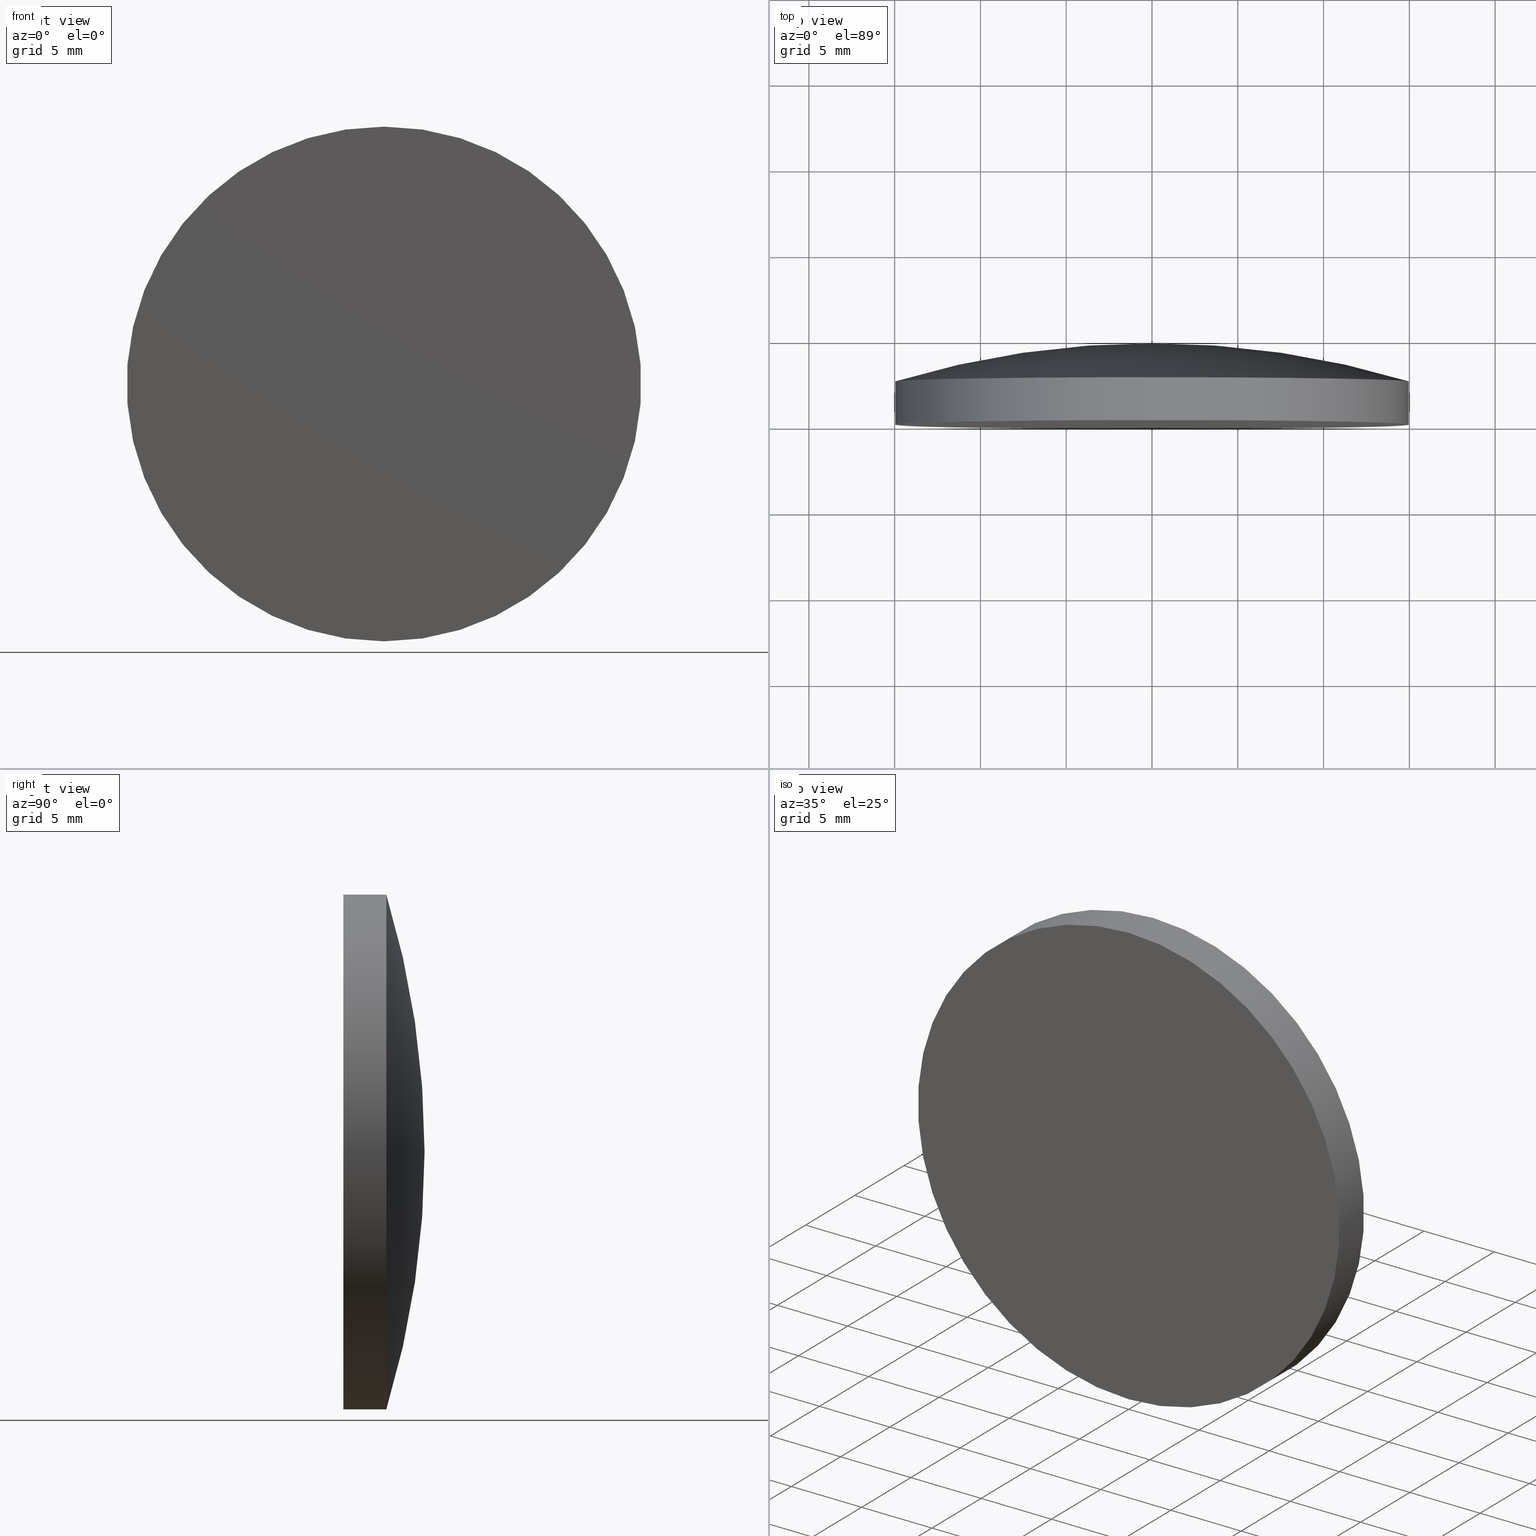
[diagram: canonical four-view strip — front | top / right | iso, engineering-drawing reading convention]
A machine part, canonical four-view strip (front | top / right | iso — engineering-drawing reading convention). The complete STEP part file that produces these views, byte-faithful:
ISO-10303-21;
HEADER;
FILE_DESCRIPTION (( 'STEP AP203' ),
    '1' );
FILE_NAME ('100598.STEP',
    '2024-05-10T01:59:56',
    ( '' ),
    ( '' ),
    'SwSTEP 2.0',
    'SolidWorks 2020',
    '' );
FILE_SCHEMA (( 'CONFIG_CONTROL_DESIGN' ));
ENDSEC;

DATA;
#1 = UNCERTAINTY_MEASURE_WITH_UNIT (LENGTH_MEASURE( 1.000000000000000082E-05 ), #182, 'distance_accuracy_value', 'NONE');
#2 = CC_DESIGN_PERSON_AND_ORGANIZATION_ASSIGNMENT ( #31, #168, ( #159 ) ) ;
#3 = CARTESIAN_POINT ( 'NONE',  ( 0.000000000000000000, -46.90999874539085113, 0.000000000000000000 ) ) ;
#4 = DIRECTION ( 'NONE',  ( 0.000000000000000000, -0.000000000000000000, -1.000000000000000000 ) ) ;
#5 = CARTESIAN_POINT ( 'NONE',  ( 0.000000000000000000, -1.734723475976807094E-15, 0.000000000000000000 ) ) ;
#6 = CALENDAR_DATE ( 2024, 10, 5 ) ;
#7 = EDGE_CURVE ( 'NONE', #141, #186, #172, .T. ) ;
#8 = PERSON_AND_ORGANIZATION ( #105, #177 ) ;
#9 = CALENDAR_DATE ( 2024, 10, 5 ) ;
#10 = CC_DESIGN_DATE_AND_TIME_ASSIGNMENT ( #14, #185, ( #159 ) ) ;
#11 = PERSON_AND_ORGANIZATION ( #105, #177 ) ;
#12 = EDGE_LOOP ( 'NONE', ( #97, #157, #52, #175 ) ) ;
#13 = TOROIDAL_SURFACE ( 'NONE', #131, -0.01138314681478104495, 51.64000000000000057 ) ;
#14 = DATE_AND_TIME ( #94, #143 ) ;
#15 = ORIENTED_EDGE ( 'NONE', *, *, #63, .F. ) ;
#16 = CARTESIAN_POINT ( 'NONE',  ( 0.000000000000000000, 2.500000000000000444, 15.00000000000000178 ) ) ;
#17 = CC_DESIGN_PERSON_AND_ORGANIZATION_ASSIGNMENT ( #64, #66, ( #167 ) ) ;
#18 = VERTEX_POINT ( 'NONE', #21 ) ;
#19 = CC_DESIGN_DATE_AND_TIME_ASSIGNMENT ( #106, #59, ( #155 ) ) ;
#20 = APPLICATION_CONTEXT ( 'configuration controlled 3d designs of mechanical parts and assemblies' ) ;
#21 = CARTESIAN_POINT ( 'NONE',  ( 0.000000000000000000, -1.734723475976807094E-15, 15.00000000000000000 ) ) ;
#22 = AXIS2_PLACEMENT_3D ( 'NONE', #156, #35, #82 ) ;
#23 = PLANE ( 'NONE',  #78 ) ;
#24 = CARTESIAN_POINT ( 'NONE',  ( 0.000000000000000000, 4.730000000000000426, 0.000000000000000000 ) ) ;
#25 = AXIS2_PLACEMENT_3D ( 'NONE', #67, #189, #95 ) ;
#26 = EDGE_CURVE ( 'NONE', #186, #81, #110, .T. ) ;
#27 = APPLICATION_PROTOCOL_DEFINITION ( 'international standard', 'config_control_design', 1994, #188 ) ;
#28 = DATE_AND_TIME ( #121, #50 ) ;
#29 = DIRECTION ( 'NONE',  ( -0.000000000000000000, 1.000000000000000000, -0.000000000000000000 ) ) ;
#30 = PERSON_AND_ORGANIZATION ( #105, #177 ) ;
#31 = PERSON_AND_ORGANIZATION ( #105, #177 ) ;
#32 = COORDINATED_UNIVERSAL_TIME_OFFSET ( 8, 0, .AHEAD. ) ;
#33 = DIRECTION ( 'NONE',  ( 0.000000000000000000, 0.000000000000000000, 1.000000000000000000 ) ) ;
#34 = PERSON_AND_ORGANIZATION ( #105, #177 ) ;
#35 = DIRECTION ( 'NONE',  ( 1.000000000000000000, 0.000000000000000000, 1.224646799147353207E-16 ) ) ;
#36 = ORIENTED_EDGE ( 'NONE', *, *, #41, .F. ) ;
#37 = ORIENTED_EDGE ( 'NONE', *, *, #135, .F. ) ;
#38 = CARTESIAN_POINT ( 'NONE',  ( 1.836970198721029589E-15, 2.500000000000000444, -15.00000000000000178 ) ) ;
#39 = FACE_OUTER_BOUND ( 'NONE', #12, .T. ) ;
#40 = DIRECTION ( 'NONE',  ( -0.000000000000000000, 1.000000000000000000, -0.000000000000000000 ) ) ;
#41 = EDGE_CURVE ( 'NONE', #81, #187, #87, .T. ) ;
#42 = PRODUCT_DEFINITION_SHAPE ( 'NONE', 'NONE',  #155 ) ;
#43 = CC_DESIGN_APPROVAL ( #148, ( #167 ) ) ;
#44 = TOROIDAL_SURFACE ( 'NONE', #136, -0.01138314681478104495, 51.64000000000000057 ) ;
#45 = DIRECTION ( 'NONE',  ( -0.000000000000000000, 1.000000000000000000, -0.000000000000000000 ) ) ;
#46 = DATE_AND_TIME ( #6, #118 ) ;
#47 = COORDINATED_UNIVERSAL_TIME_OFFSET ( 8, 0, .AHEAD. ) ;
#48 = APPLICATION_PROTOCOL_DEFINITION ( 'international standard', 'config_control_design', 1994, #20 ) ;
#49 = EDGE_CURVE ( 'NONE', #18, #81, #112, .T. ) ;
#50 = LOCAL_TIME ( 9, 59, 56.00000000000000000, #47 ) ;
#51 = CALENDAR_DATE ( 2024, 10, 5 ) ;
#52 = ORIENTED_EDGE ( 'NONE', *, *, #183, .F. ) ;
#53 = ORIENTED_EDGE ( 'NONE', *, *, #135, .T. ) ;
#54 = ORIENTED_EDGE ( 'NONE', *, *, #49, .T. ) ;
#55 = CARTESIAN_POINT ( 'NONE',  ( 0.000000000000000000, 4.730000000000000426, 15.00000000000000000 ) ) ;
#56 = MANIFOLD_SOLID_BREP ( '��ת1', #120 ) ;
#57 = CC_DESIGN_APPROVAL ( #170, ( #159 ) ) ;
#58 = DIRECTION ( 'NONE',  ( 0.000000000000000000, 0.000000000000000000, 1.000000000000000000 ) ) ;
#59 = DATE_TIME_ROLE ( 'creation_date' ) ;
#60 = CARTESIAN_POINT ( 'NONE',  ( 0.000000000000000000, 0.000000000000000000, 0.000000000000000000 ) ) ;
#61 = AXIS2_PLACEMENT_3D ( 'NONE', #24, #147, #144 ) ;
#62 = DATE_AND_TIME ( #51, #126 ) ;
#63 = EDGE_CURVE ( 'NONE', #18, #141, #149, .T. ) ;
#64 = PERSON_AND_ORGANIZATION ( #105, #177 ) ;
#65 = ORIENTED_EDGE ( 'NONE', *, *, #183, .T. ) ;
#66 = PERSON_AND_ORGANIZATION_ROLE ( 'design_supplier' ) ;
#67 = CARTESIAN_POINT ( 'NONE',  ( 0.000000000000000000, -46.90999874539085113, -0.01138314681478104495 ) ) ;
#68 = ORIENTED_EDGE ( 'NONE', *, *, #7, .F. ) ;
#69 = CARTESIAN_POINT ( 'NONE',  ( 0.000000000000000000, 2.499999999999998224, 0.000000000000000000 ) ) ;
#70 = CC_DESIGN_PERSON_AND_ORGANIZATION_ASSIGNMENT ( #11, #152, ( #155 ) ) ;
#71 = CARTESIAN_POINT ( 'NONE',  ( 0.000000000000000000, 4.730000000000000426, 0.000000000000000000 ) ) ;
#72 = DESIGN_CONTEXT ( 'detailed design', #20, 'design' ) ;
#73 = APPROVAL_PERSON_ORGANIZATION ( #34, #170, #76 ) ;
#74 = DIRECTION ( 'NONE',  ( 0.000000000000000000, 0.000000000000000000, 1.000000000000000000 ) ) ;
#75 = APPROVAL_STATUS ( 'not_yet_approved' ) ;
#76 = APPROVAL_ROLE ( '' ) ;
#77 = CC_DESIGN_APPROVAL ( #103, ( #155 ) ) ;
#78 = AXIS2_PLACEMENT_3D ( 'NONE', #191, #146, #4 ) ;
#79 = EDGE_CURVE ( 'NONE', #186, #187, #193, .T. ) ;
#80 = VECTOR ( 'NONE', #127, 1000.000000000000000 ) ;
#81 = VERTEX_POINT ( 'NONE', #16 ) ;
#82 = DIRECTION ( 'NONE',  ( 1.224646799147353207E-16, 0.000000000000000000, -1.000000000000000000 ) ) ;
#83 = CARTESIAN_POINT ( 'NONE',  ( 0.000000000000000000, -1.734723475976807094E-15, 0.000000000000000000 ) ) ;
#84 = DIRECTION ( 'NONE',  ( -0.000000000000000000, 1.000000000000000000, -0.000000000000000000 ) ) ;
#85 = ADVANCED_FACE ( 'NONE', ( #173 ), #23, .T. ) ;
#86 = CARTESIAN_POINT ( 'NONE',  ( 0.000000000000000000, 4.730000000000000426, 0.000000000000000000 ) ) ;
#87 = CIRCLE ( 'NONE', #25, 51.64000000000000057 ) ;
#88 = AXIS2_PLACEMENT_3D ( 'NONE', #60, #122, #194 ) ;
#89 = AXIS2_PLACEMENT_3D ( 'NONE', #5, #116, #178 ) ;
#90 = CARTESIAN_POINT ( 'NONE',  ( 0.000000000000000000, 2.499999999999998224, 0.000000000000000000 ) ) ;
#91 = APPROVAL_DATE_TIME ( #28, #103 ) ;
#92 = APPROVAL_PERSON_ORGANIZATION ( #8, #103, #192 ) ;
#93 = DIRECTION ( 'NONE',  ( 0.000000000000000000, 0.000000000000000000, 1.000000000000000000 ) ) ;
#94 = CALENDAR_DATE ( 2024, 10, 5 ) ;
#95 = DIRECTION ( 'NONE',  ( 0.000000000000000000, 0.000000000000000000, 1.000000000000000000 ) ) ;
#96 = EDGE_LOOP ( 'NONE', ( #184, #124, #142 ) ) ;
#97 = ORIENTED_EDGE ( 'NONE', *, *, #63, .T. ) ;
#98 = AXIS2_PLACEMENT_3D ( 'NONE', #90, #150, #74 ) ;
#99 = CYLINDRICAL_SURFACE ( 'NONE', #115, 15.00000000000000000 ) ;
#100 = DIRECTION ( 'NONE',  ( 0.000000000000000000, 0.000000000000000000, 1.000000000000000000 ) ) ;
#101 = PRODUCT ( '100598', '100598', '', ( #137 ) ) ;
#102 =( NAMED_UNIT ( * ) SI_UNIT ( $, .STERADIAN. ) SOLID_ANGLE_UNIT ( ) );
#103 = APPROVAL ( #75, 'δָ��' ) ;
#104 =( NAMED_UNIT ( * ) PLANE_ANGLE_UNIT ( ) SI_UNIT ( $, .RADIAN. ) );
#105 = PERSON ( 'δָ��', 'δָ��', 'δָ��', ('δָ��'), ('δָ��'), ('δָ��') ) ;
#106 = DATE_AND_TIME ( #9, #174 ) ;
#107 = PRODUCT_RELATED_PRODUCT_CATEGORY ( 'detail', '', ( #101 ) ) ;
#108 = CARTESIAN_POINT ( 'NONE',  ( 0.000000000000000000, -46.90999874539085113, 0.000000000000000000 ) ) ;
#109 = CC_DESIGN_SECURITY_CLASSIFICATION ( #159, ( #167 ) ) ;
#110 = CIRCLE ( 'NONE', #163, 15.00000000000000000 ) ;
#111 = PERSON_AND_ORGANIZATION_ROLE ( 'creator' ) ;
#112 = LINE ( 'NONE', #55, #80 ) ;
#113 = EDGE_LOOP ( 'NONE', ( #15, #37 ) ) ;
#114 = APPROVAL_PERSON_ORGANIZATION ( #30, #148, #171 ) ;
#115 = AXIS2_PLACEMENT_3D ( 'NONE', #86, #40, #100 ) ;
#116 = DIRECTION ( 'NONE',  ( -0.000000000000000000, 1.000000000000000000, -0.000000000000000000 ) ) ;
#117 = DIRECTION ( 'NONE',  ( 0.000000000000000000, 0.000000000000000000, 1.000000000000000000 ) ) ;
#118 = LOCAL_TIME ( 9, 59, 56.00000000000000000, #181 ) ;
#119 = ADVANCED_FACE ( 'NONE', ( #134 ), #44, .T. ) ;
#120 = CLOSED_SHELL ( 'NONE', ( #140, #201, #119, #85, #165 ) ) ;
#121 = CALENDAR_DATE ( 2024, 10, 5 ) ;
#122 = DIRECTION ( 'NONE',  ( 0.000000000000000000, 0.000000000000000000, 1.000000000000000000 ) ) ;
#123 = APPROVAL_DATE_TIME ( #62, #148 ) ;
#124 = ORIENTED_EDGE ( 'NONE', *, *, #26, .T. ) ;
#125 = SECURITY_CLASSIFICATION_LEVEL ( 'unclassified' ) ;
#126 = LOCAL_TIME ( 9, 59, 56.00000000000000000, #166 ) ;
#127 = DIRECTION ( 'NONE',  ( -0.000000000000000000, 1.000000000000000000, -0.000000000000000000 ) ) ;
#128 = CC_DESIGN_PERSON_AND_ORGANIZATION_ASSIGNMENT ( #196, #111, ( #167 ) ) ;
#129 = ORIENTED_EDGE ( 'NONE', *, *, #26, .F. ) ;
#130 =( GEOMETRIC_REPRESENTATION_CONTEXT ( 3 ) GLOBAL_UNCERTAINTY_ASSIGNED_CONTEXT ( ( #1 ) ) GLOBAL_UNIT_ASSIGNED_CONTEXT ( ( #182, #104, #102 ) ) REPRESENTATION_CONTEXT ( 'NONE', 'WORKASPACE' ) );
#131 = AXIS2_PLACEMENT_3D ( 'NONE', #108, #45, #58 ) ;
#132 = FACE_OUTER_BOUND ( 'NONE', #200, .T. ) ;
#133 = DIRECTION ( 'NONE',  ( -0.000000000000000000, 1.000000000000000000, -0.000000000000000000 ) ) ;
#134 = FACE_OUTER_BOUND ( 'NONE', #96, .T. ) ;
#135 = EDGE_CURVE ( 'NONE', #141, #18, #160, .T. ) ;
#136 = AXIS2_PLACEMENT_3D ( 'NONE', #3, #133, #117 ) ;
#137 = MECHANICAL_CONTEXT ( 'NONE', #188, 'mechanical' ) ;
#138 = CIRCLE ( 'NONE', #98, 15.00000000000000000 ) ;
#139 = APPROVAL_STATUS ( 'not_yet_approved' ) ;
#140 = ADVANCED_FACE ( 'NONE', ( #39 ), #99, .T. ) ;
#141 = VERTEX_POINT ( 'NONE', #158 ) ;
#142 = ORIENTED_EDGE ( 'NONE', *, *, #41, .T. ) ;
#143 = LOCAL_TIME ( 9, 59, 56.00000000000000000, #32 ) ;
#144 = DIRECTION ( 'NONE',  ( 0.000000000000000000, 0.000000000000000000, 1.000000000000000000 ) ) ;
#145 = VECTOR ( 'NONE', #198, 1000.000000000000000 ) ;
#146 = DIRECTION ( 'NONE',  ( 0.000000000000000000, -1.000000000000000000, 0.000000000000000000 ) ) ;
#147 = DIRECTION ( 'NONE',  ( -0.000000000000000000, 1.000000000000000000, -0.000000000000000000 ) ) ;
#148 = APPROVAL ( #139, 'δָ��' ) ;
#149 = CIRCLE ( 'NONE', #190, 15.00000000000000000 ) ;
#150 = DIRECTION ( 'NONE',  ( -0.000000000000000000, 1.000000000000000000, -0.000000000000000000 ) ) ;
#151 = PERSON_AND_ORGANIZATION ( #105, #177 ) ;
#152 = PERSON_AND_ORGANIZATION_ROLE ( 'creator' ) ;
#153 = ADVANCED_BREP_SHAPE_REPRESENTATION ( '100598', ( #56, #88 ), #130 ) ;
#154 = PERSON_AND_ORGANIZATION_ROLE ( 'design_owner' ) ;
#155 = PRODUCT_DEFINITION ( 'δ֪', '', #167, #72 ) ;
#156 = CARTESIAN_POINT ( 'NONE',  ( -1.394033431094599677E-18, -46.90999874539085113, 0.01138314681478104495 ) ) ;
#157 = ORIENTED_EDGE ( 'NONE', *, *, #7, .T. ) ;
#158 = CARTESIAN_POINT ( 'NONE',  ( 1.836970198721029589E-15, -1.734723475976807094E-15, -15.00000000000000000 ) ) ;
#159 = SECURITY_CLASSIFICATION ( '', '', #125 ) ;
#160 = CIRCLE ( 'NONE', #89, 15.00000000000000000 ) ;
#161 = FACE_OUTER_BOUND ( 'NONE', #199, .T. ) ;
#162 = CYLINDRICAL_SURFACE ( 'NONE', #61, 15.00000000000000000 ) ;
#163 = AXIS2_PLACEMENT_3D ( 'NONE', #69, #84, #33 ) ;
#164 = COORDINATED_UNIVERSAL_TIME_OFFSET ( 8, 0, .AHEAD. ) ;
#165 = ADVANCED_FACE ( 'NONE', ( #161 ), #162, .T. ) ;
#166 = COORDINATED_UNIVERSAL_TIME_OFFSET ( 8, 0, .AHEAD. ) ;
#167 = PRODUCT_DEFINITION_FORMATION_WITH_SPECIFIED_SOURCE ( '�κ�', '', #101, .NOT_KNOWN. ) ;
#168 = PERSON_AND_ORGANIZATION_ROLE ( 'classification_officer' ) ;
#169 = CARTESIAN_POINT ( 'NONE',  ( 1.836970198721029589E-15, 4.730000000000000426, -15.00000000000000000 ) ) ;
#170 = APPROVAL ( #195, 'δָ��' ) ;
#171 = APPROVAL_ROLE ( '' ) ;
#172 = LINE ( 'NONE', #169, #145 ) ;
#173 = FACE_OUTER_BOUND ( 'NONE', #113, .T. ) ;
#174 = LOCAL_TIME ( 9, 59, 56.00000000000000000, #164 ) ;
#175 = ORIENTED_EDGE ( 'NONE', *, *, #49, .F. ) ;
#176 = CC_DESIGN_PERSON_AND_ORGANIZATION_ASSIGNMENT ( #151, #154, ( #101 ) ) ;
#177 = ORGANIZATION ( 'δָ��', 'δָ��', '' ) ;
#178 = DIRECTION ( 'NONE',  ( 0.000000000000000000, 0.000000000000000000, 1.000000000000000000 ) ) ;
#179 = APPROVAL_DATE_TIME ( #46, #170 ) ;
#180 = SHAPE_DEFINITION_REPRESENTATION ( #42, #153 ) ;
#181 = COORDINATED_UNIVERSAL_TIME_OFFSET ( 8, 0, .AHEAD. ) ;
#182 =( LENGTH_UNIT ( ) NAMED_UNIT ( * ) SI_UNIT ( .MILLI., .METRE. ) );
#183 = EDGE_CURVE ( 'NONE', #81, #186, #138, .T. ) ;
#184 = ORIENTED_EDGE ( 'NONE', *, *, #79, .F. ) ;
#185 = DATE_TIME_ROLE ( 'classification_date' ) ;
#186 = VERTEX_POINT ( 'NONE', #38 ) ;
#187 = VERTEX_POINT ( 'NONE', #71 ) ;
#188 = APPLICATION_CONTEXT ( 'configuration controlled 3d designs of mechanical parts and assemblies' ) ;
#189 = DIRECTION ( 'NONE',  ( -1.000000000000000000, 0.000000000000000000, 0.000000000000000000 ) ) ;
#190 = AXIS2_PLACEMENT_3D ( 'NONE', #83, #29, #93 ) ;
#191 = CARTESIAN_POINT ( 'NONE',  ( 0.000000000000000000, -9.184850993605147944E-16, 0.000000000000000000 ) ) ;
#192 = APPROVAL_ROLE ( '' ) ;
#193 = CIRCLE ( 'NONE', #22, 51.64000000000000057 ) ;
#194 = DIRECTION ( 'NONE',  ( 1.000000000000000000, 0.000000000000000000, 0.000000000000000000 ) ) ;
#195 = APPROVAL_STATUS ( 'not_yet_approved' ) ;
#196 = PERSON_AND_ORGANIZATION ( #105, #177 ) ;
#197 = ORIENTED_EDGE ( 'NONE', *, *, #79, .T. ) ;
#198 = DIRECTION ( 'NONE',  ( -0.000000000000000000, 1.000000000000000000, -0.000000000000000000 ) ) ;
#199 = EDGE_LOOP ( 'NONE', ( #68, #53, #54, #129 ) ) ;
#200 = EDGE_LOOP ( 'NONE', ( #65, #197, #36 ) ) ;
#201 = ADVANCED_FACE ( 'NONE', ( #132 ), #13, .T. ) ;
ENDSEC;
END-ISO-10303-21;
